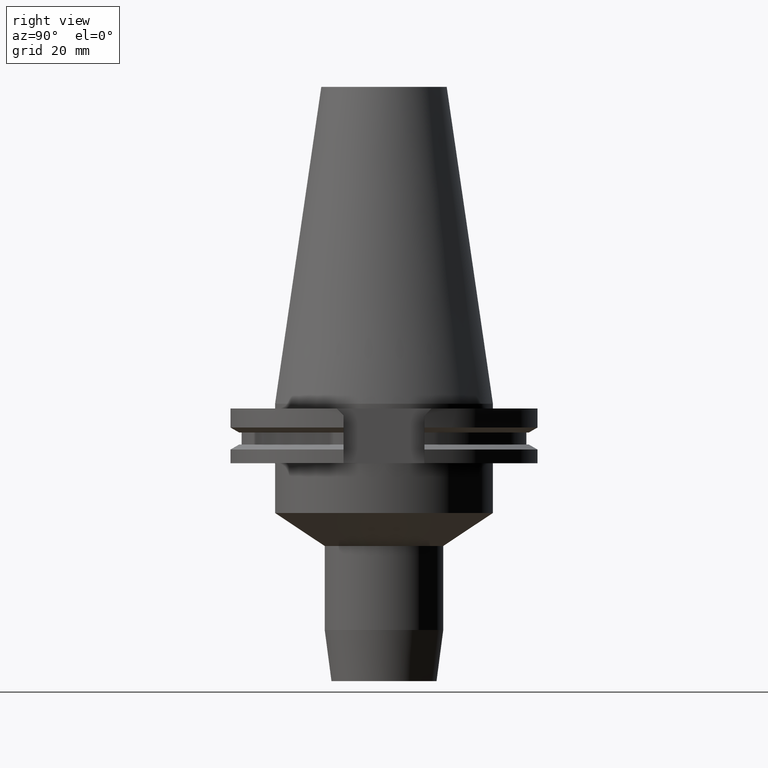
[diagram: clean part render]
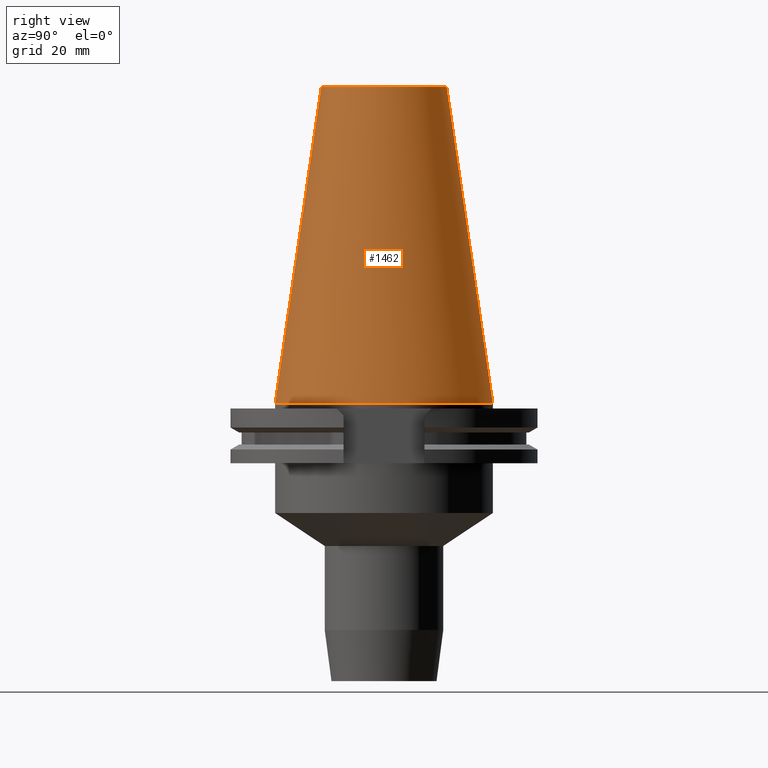
[diagram: same view with one face highlighted and labeled with its STEP entity id]
A machine part, right view. The second image highlights one B-rep face of the part: STEP entity #1462.
In plain terms, the highlighted conical surface has half-angle 8.297 deg.
Its self-contained STEP definition (entity closure, byte-faithful):
#26=CARTESIAN_POINT('',(0.E0,0.E0,1.016E2));
#27=DIRECTION('',(0.E0,0.E0,-1.E0));
#28=DIRECTION('',(0.E0,1.E0,0.E0));
#29=AXIS2_PLACEMENT_3D('',#26,#27,#28);
#50=DIRECTION('',(0.E0,-1.443069799457E-1,-9.895329683942E-1));
#51=VECTOR('',#50,1.026746993229E2);
#52=CARTESIAN_POINT('',(0.E0,-2.010832422387E1,1.016E2));
#53=LINE('',#52,#51);
#65=DIRECTION('',(0.E0,1.443069799457E-1,-9.895329683942E-1));
#66=VECTOR('',#65,1.026746993229E2);
#67=CARTESIAN_POINT('',(0.E0,2.010832422387E1,1.016E2));
#68=LINE('',#67,#66);
#72=CARTESIAN_POINT('',(0.E0,0.E0,7.958078640513E-13));
#73=DIRECTION('',(0.E0,0.E0,-1.E0));
#74=DIRECTION('',(0.E0,1.E0,0.E0));
#75=AXIS2_PLACEMENT_3D('',#72,#73,#74);
#1212=CARTESIAN_POINT('',(0.E0,-2.010832422388E1,1.016E2));
#1213=CARTESIAN_POINT('',(0.E0,2.010832422388E1,1.016E2));
#1214=VERTEX_POINT('',#1212);
#1215=VERTEX_POINT('',#1213);
#1220=CARTESIAN_POINT('',(0.E0,3.4925E1,5.258016244625E-13));
#1221=VERTEX_POINT('',#1220);
#1222=CARTESIAN_POINT('',(0.E0,-3.4925E1,5.258016244625E-13));
#1223=VERTEX_POINT('',#1222);
#1450=CARTESIAN_POINT('',(0.E0,0.E0,5.08E1));
#1451=DIRECTION('',(0.E0,0.E0,-1.E0));
#1452=DIRECTION('',(0.E0,-1.E0,0.E0));
#1453=AXIS2_PLACEMENT_3D('',#1450,#1451,#1452);
#1454=CONICAL_SURFACE('',#1453,2.751666211194E1,8.29715E0);
#1455=ORIENTED_EDGE('',*,*,#1440,.T.);
#1457=ORIENTED_EDGE('',*,*,#1456,.T.);
#1458=ORIENTED_EDGE('',*,*,#1443,.F.);
#1459=ORIENTED_EDGE('',*,*,#1424,.F.);
#1460=EDGE_LOOP('',(#1455,#1457,#1458,#1459));
#1461=FACE_OUTER_BOUND('',#1460,.F.);
#30=CIRCLE('',#29,2.010832422388E1);
#76=CIRCLE('',#75,3.4925E1);
#1424=EDGE_CURVE('',#1215,#1214,#30,.T.);
#1440=EDGE_CURVE('',#1215,#1221,#68,.T.);
#1443=EDGE_CURVE('',#1214,#1223,#53,.T.);
#1456=EDGE_CURVE('',#1221,#1223,#76,.T.);
#1462=ADVANCED_FACE('',(#1461),#1454,.T.);